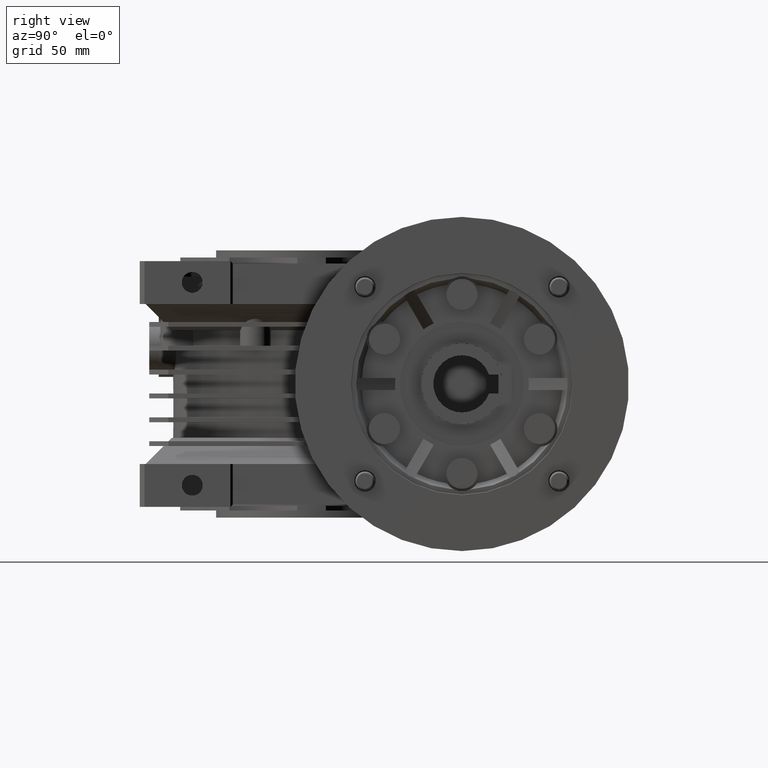
[diagram: clean part render]
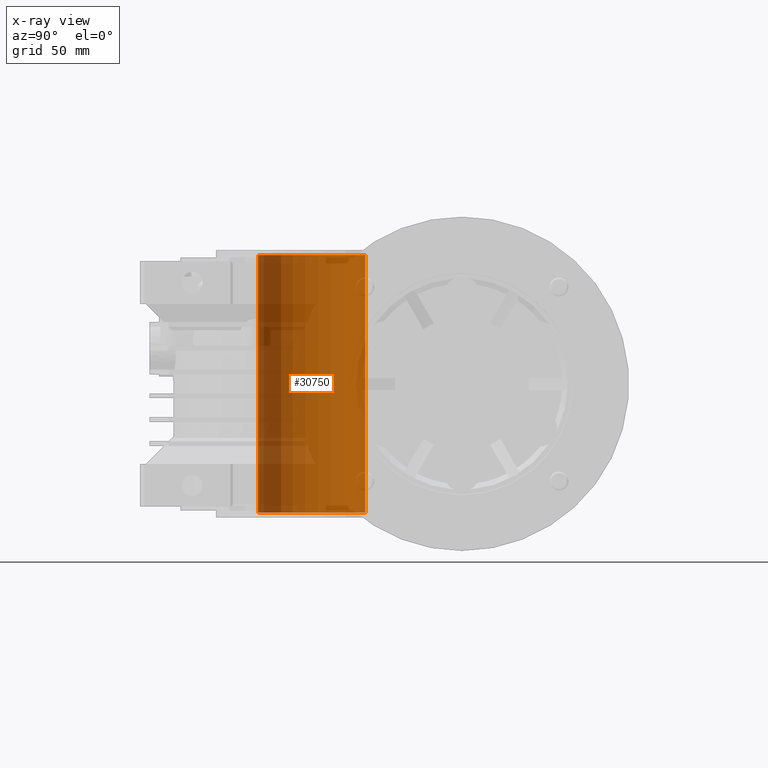
[diagram: x-ray — body ghosted, one internal face saturated and labeled with its STEP entity id]
A machine part, right view, then the same camera in x-ray: the body is ghosted and one INTERNAL B-rep face — a face not visible from any outside direction — is saturated and labeled: STEP entity #30750.
In plain terms, the highlighted cylindrical surface (partial cylindrical patch) has radius 22.5 mm, axis along (0, 0, 1).
Its self-contained STEP definition (entity closure, byte-faithful):
#2087 = DIRECTION ( 'NONE',  ( 0.000000000000000000, 1.000000000000000000, 0.000000000000000000 ) ) ;
#4869 = CARTESIAN_POINT ( 'NONE',  ( 0.000000000000000000, 22.50000000000000000, -54.00000000000000000 ) ) ;
#6694 = CIRCLE ( 'NONE', #35851, 22.50000000000000000 ) ;
#8134 = DIRECTION ( 'NONE',  ( 0.000000000000000000, 0.000000000000000000, 1.000000000000000000 ) ) ;
#10191 = CARTESIAN_POINT ( 'NONE',  ( -2.755455298081544778E-15, -22.50000000000000000, -54.00000000000000000 ) ) ;
#11484 = VECTOR ( 'NONE', #35055, 1000.000000000000000 ) ;
#12617 = VERTEX_POINT ( 'NONE', #10191 ) ;
#12635 = VERTEX_POINT ( 'NONE', #4869 ) ;
#17929 = AXIS2_PLACEMENT_3D ( 'NONE', #28573, #38835, #38605 ) ;
#18000 = EDGE_CURVE ( 'NONE', #19035, #37986, #42812, .T. ) ;
#18820 = CARTESIAN_POINT ( 'NONE',  ( 0.000000000000000000, 22.50000000000000000, -59.00000000000000000 ) ) ;
#19035 = VERTEX_POINT ( 'NONE', #41020 ) ;
#19069 = LINE ( 'NONE', #21504, #36142 ) ;
#19737 = EDGE_CURVE ( 'NONE', #12635, #37986, #39102, .T. ) ;
#21328 = EDGE_CURVE ( 'NONE', #12635, #12617, #6694, .T. ) ;
#21504 = CARTESIAN_POINT ( 'NONE',  ( -2.755455298081544778E-15, -22.50000000000000000, -59.00000000000000000 ) ) ;
#21933 = CARTESIAN_POINT ( 'NONE',  ( 0.000000000000000000, 22.50000000000000000, 54.00000000000000000 ) ) ;
#22356 = ORIENTED_EDGE ( 'NONE', *, *, #25417, .F. ) ;
#22987 = DIRECTION ( 'NONE',  ( 0.000000000000000000, 0.000000000000000000, 1.000000000000000000 ) ) ;
#23267 = CARTESIAN_POINT ( 'NONE',  ( 0.000000000000000000, 0.000000000000000000, 54.00000000000000000 ) ) ;
#23466 = DIRECTION ( 'NONE',  ( 0.000000000000000000, 0.000000000000000000, -1.000000000000000000 ) ) ;
#25417 = EDGE_CURVE ( 'NONE', #12617, #19035, #19069, .T. ) ;
#25454 = CYLINDRICAL_SURFACE ( 'NONE', #17929, 22.50000000000000000 ) ;
#26311 = ORIENTED_EDGE ( 'NONE', *, *, #21328, .F. ) ;
#26524 = ORIENTED_EDGE ( 'NONE', *, *, #18000, .F. ) ;
#27715 = EDGE_LOOP ( 'NONE', ( #22356, #26311, #35716, #26524 ) ) ;
#28557 = AXIS2_PLACEMENT_3D ( 'NONE', #23267, #23466, #33527 ) ;
#28573 = CARTESIAN_POINT ( 'NONE',  ( 0.000000000000000000, 0.000000000000000000, -59.00000000000000000 ) ) ;
#28804 = FACE_OUTER_BOUND ( 'NONE', #27715, .T. ) ;
#29458 = CARTESIAN_POINT ( 'NONE',  ( 0.000000000000000000, 0.000000000000000000, -54.00000000000000000 ) ) ;
#30750 = ADVANCED_FACE ( 'NONE', ( #28804 ), #25454, .F. ) ;
#33527 = DIRECTION ( 'NONE',  ( 0.000000000000000000, 1.000000000000000000, 0.000000000000000000 ) ) ;
#35055 = DIRECTION ( 'NONE',  ( 0.000000000000000000, 0.000000000000000000, 1.000000000000000000 ) ) ;
#35716 = ORIENTED_EDGE ( 'NONE', *, *, #19737, .T. ) ;
#35851 = AXIS2_PLACEMENT_3D ( 'NONE', #29458, #22987, #2087 ) ;
#36142 = VECTOR ( 'NONE', #8134, 1000.000000000000000 ) ;
#37986 = VERTEX_POINT ( 'NONE', #21933 ) ;
#38605 = DIRECTION ( 'NONE',  ( 0.000000000000000000, 1.000000000000000000, 0.000000000000000000 ) ) ;
#38835 = DIRECTION ( 'NONE',  ( 0.000000000000000000, 0.000000000000000000, 1.000000000000000000 ) ) ;
#39102 = LINE ( 'NONE', #18820, #11484 ) ;
#41020 = CARTESIAN_POINT ( 'NONE',  ( -2.755455298081544778E-15, -22.50000000000000000, 54.00000000000000000 ) ) ;
#42812 = CIRCLE ( 'NONE', #28557, 22.50000000000000000 ) ;